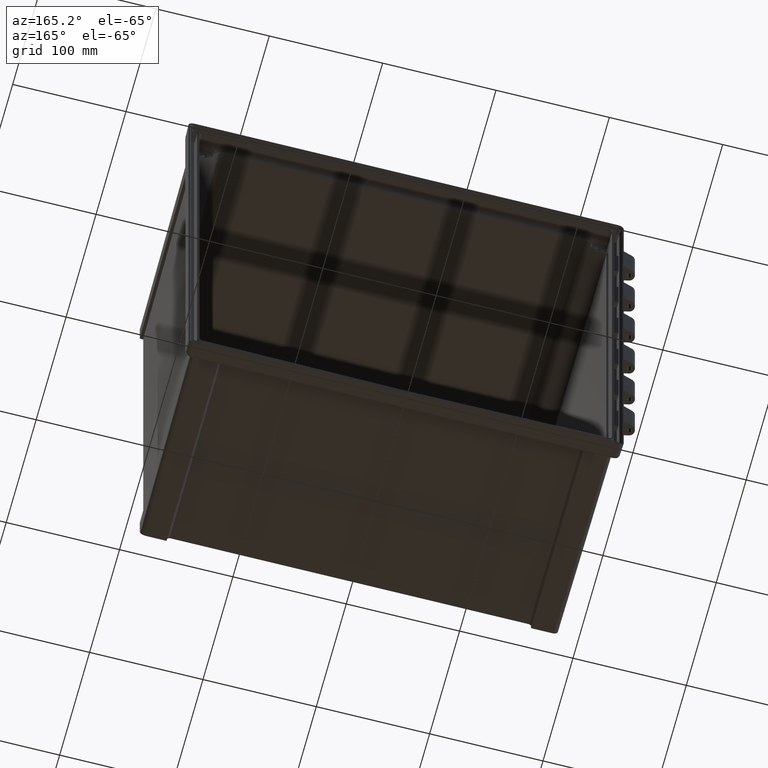
[diagram: clean part render]
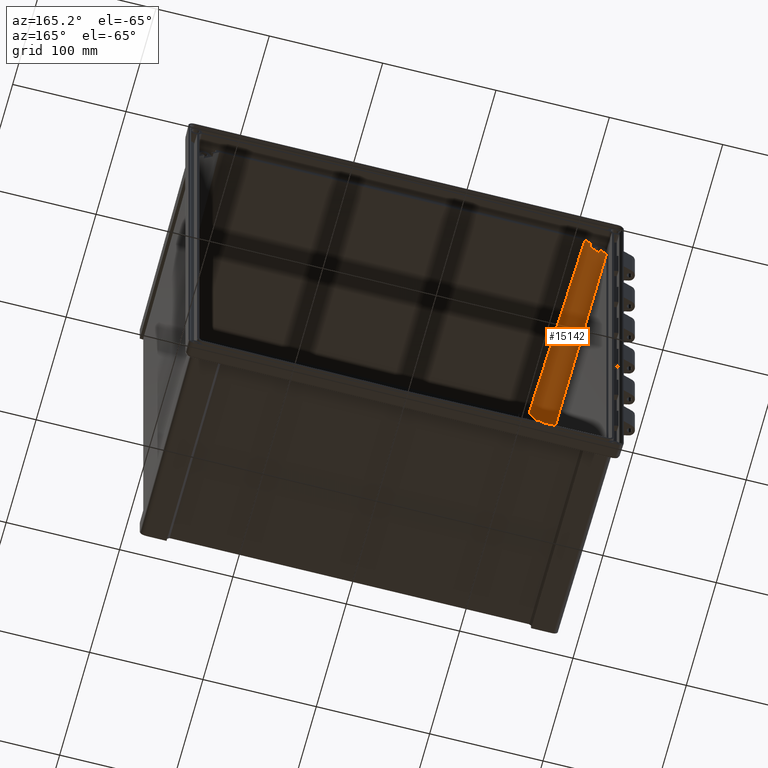
[diagram: same view with one face highlighted and labeled with its STEP entity id]
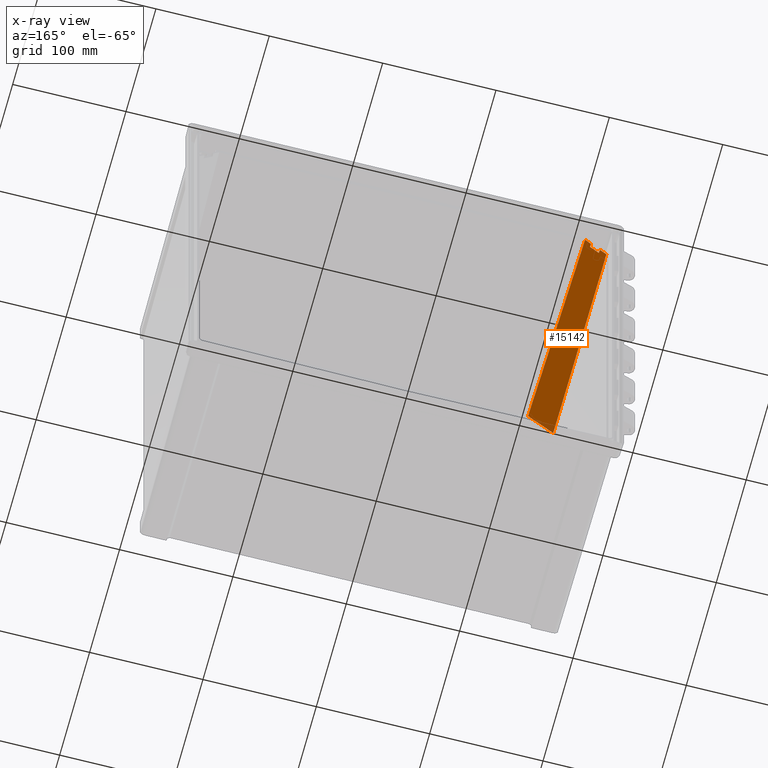
[diagram: x-ray of the same camera — body ghosted, the highlighted face saturated]
A machine part, auxiliary view. The second image highlights one B-rep face of the part: STEP entity #15142.
The next image is the same camera in x-ray: the body ghosted, the highlighted face saturated — about 2% of this face is hidden behind the body in this view.
In plain terms, the highlighted planar face has unit normal (0.7069, 0.0262, -0.7069).
Its self-contained STEP definition (entity closure, byte-faithful):
#19 = EDGE_CURVE ( 'NONE', #8154, #14624, #3677, .T. ) ;
#312 = CARTESIAN_POINT ( 'NONE',  ( -161.3894390574844800, -13.26352849845292400, 205.1841290895174800 ) ) ;
#327 = DIRECTION ( 'NONE',  ( 0.7068644733530222700, 0.02617694830787321200, -0.7068644733530193800 ) ) ;
#475 = DIRECTION ( 'NONE',  ( 0.7071067811865460200, -0.0000000000000000000, 0.7071067811865489100 ) ) ;
#710 = CARTESIAN_POINT ( 'NONE',  ( -156.5170099140074500, -185.4000000000000100, 203.6819168607589700 ) ) ;
#926 = EDGE_CURVE ( 'NONE', #16484, #8154, #3054, .T. ) ;
#1837 = CARTESIAN_POINT ( 'NONE',  ( 54083.21385931700900, -185.4000000000000100, 54443.41278609200500 ) ) ;
#1886 = CARTESIAN_POINT ( 'NONE',  ( -166.5219498892426500, -16.26352849845282500, 199.9405208014900400 ) ) ;
#2006 = VERTEX_POINT ( 'NONE', #710 ) ;
#2051 = VECTOR ( 'NONE', #2749, 1000.000000000000100 ) ;
#2067 = CARTESIAN_POINT ( 'NONE',  ( 54080.08208735902700, -16.26352849845282500, 54446.54455804998700 ) ) ;
#2115 = VECTOR ( 'NONE', #3309, 1000.000000000000100 ) ;
#2749 = DIRECTION ( 'NONE',  ( -0.7071067811865460200, 0.0000000000000000000, -0.7071067811865489100 ) ) ;
#2798 = ORIENTED_EDGE ( 'NONE', *, *, #11690, .T. ) ;
#2825 = DIRECTION ( 'NONE',  ( -0.7071067811865460200, 0.0000000000000000000, -0.7071067811865489100 ) ) ;
#2952 = CARTESIAN_POINT ( 'NONE',  ( -189.3881877647203300, 1041.417130803650700, 216.2428265273774700 ) ) ;
#3046 = LINE ( 'NONE', #13965, #6098 ) ;
#3054 = LINE ( 'NONE', #3535, #5293 ) ;
#3309 = DIRECTION ( 'NONE',  ( -0.7071067811865460200, 0.0000000000000000000, -0.7071067811865489100 ) ) ;
#3387 = ORIENTED_EDGE ( 'NONE', *, *, #6769, .F. ) ;
#3389 = LINE ( 'NONE', #14389, #6025 ) ;
#3535 = CARTESIAN_POINT ( 'NONE',  ( -58.57926973538241100, -2694.275948649843000, 208.7097450344117500 ) ) ;
#3677 = LINE ( 'NONE', #6595, #2051 ) ;
#3967 = LINE ( 'NONE', #1837, #8616 ) ;
#4197 = AXIS2_PLACEMENT_3D ( 'NONE', #15924, #327, #6835 ) ;
#5293 = VECTOR ( 'NONE', #14939, 1000.000000000000100 ) ;
#5438 = VECTOR ( 'NONE', #15595, 1000.000000000000100 ) ;
#5731 = VECTOR ( 'NONE', #6746, 1000.000000000000100 ) ;
#6025 = VECTOR ( 'NONE', #2825, 1000.000000000000100 ) ;
#6068 = EDGE_CURVE ( 'NONE', #9495, #12664, #3389, .T. ) ;
#6098 = VECTOR ( 'NONE', #11427, 1000.000000000000100 ) ;
#6284 = ORIENTED_EDGE ( 'NONE', *, *, #16422, .F. ) ;
#6407 = CARTESIAN_POINT ( 'NONE',  ( -174.2933895610632100, -16.26352849845282500, 192.1690811296718400 ) ) ;
#6595 = CARTESIAN_POINT ( 'NONE',  ( 54080.02653863088900, -13.26352849845282500, 54446.60010677811800 ) ) ;
#6641 = LINE ( 'NONE', #9047, #5438 ) ;
#6746 = DIRECTION ( 'NONE',  ( -0.008723041978589085600, 0.9995616053478232300, 0.02829320860422561400 ) ) ;
#6769 = EDGE_CURVE ( 'NONE', #7660, #2006, #3967, .T. ) ;
#6792 = CARTESIAN_POINT ( 'NONE',  ( -178.6819168607591200, -185.4000000000000100, 181.5170099140110300 ) ) ;
#6835 = DIRECTION ( 'NONE',  ( -0.7071067811865460200, 0.0000000000000000000, -0.7071067811865489100 ) ) ;
#7250 = ORIENTED_EDGE ( 'NONE', *, *, #9071, .T. ) ;
#7534 = CARTESIAN_POINT ( 'NONE',  ( -166.5034204786350900, -13.26352849845282500, 200.0701476683594500 ) ) ;
#7660 = VERTEX_POINT ( 'NONE', #6792 ) ;
#8154 = VERTEX_POINT ( 'NONE', #9326 ) ;
#8616 = VECTOR ( 'NONE', #475, 1000.000000000000100 ) ;
#8886 = EDGE_CURVE ( 'NONE', #14785, #16484, #13353, .T. ) ;
#9047 = CARTESIAN_POINT ( 'NONE',  ( -150.0297522114522100, 2653.901978223038400, 315.3155836929713000 ) ) ;
#9071 = EDGE_CURVE ( 'NONE', #7660, #14624, #12927, .T. ) ;
#9326 = CARTESIAN_POINT ( 'NONE',  ( -174.4230164279291000, -13.26352849845282500, 192.1505517190713600 ) ) ;
#9417 = PLANE ( 'NONE',  #4197 ) ;
#9495 = VERTEX_POINT ( 'NONE', #312 ) ;
#9829 = ORIENTED_EDGE ( 'NONE', *, *, #926, .F. ) ;
#10547 = ORIENTED_EDGE ( 'NONE', *, *, #19, .F. ) ;
#11150 = ORIENTED_EDGE ( 'NONE', *, *, #6068, .F. ) ;
#11427 = DIRECTION ( 'NONE',  ( 0.02829320860422553100, -0.9995616053478232300, -0.008723041978589085600 ) ) ;
#11690 = EDGE_CURVE ( 'NONE', #9495, #2006, #3046, .T. ) ;
#12326 = CARTESIAN_POINT ( 'NONE',  ( -180.1841290895207000, -13.26352849845281400, 186.3894390574847400 ) ) ;
#12664 = VERTEX_POINT ( 'NONE', #7534 ) ;
#12927 = LINE ( 'NONE', #2952, #5731 ) ;
#13185 = FACE_OUTER_BOUND ( 'NONE', #13638, .T. ) ;
#13353 = LINE ( 'NONE', #2067, #2115 ) ;
#13638 = EDGE_LOOP ( 'NONE', ( #9829, #16084, #6284, #11150, #2798, #3387, #7250, #10547 ) ) ;
#13965 = CARTESIAN_POINT ( 'NONE',  ( -131.1651713159420800, -1081.046896825459000, 195.8657248049533500 ) ) ;
#14389 = CARTESIAN_POINT ( 'NONE',  ( 54080.02653863088900, -13.26352849845282500, 54446.60010677811800 ) ) ;
#14624 = VERTEX_POINT ( 'NONE', #12326 ) ;
#14785 = VERTEX_POINT ( 'NONE', #1886 ) ;
#14939 = DIRECTION ( 'NONE',  ( -0.04316785430049768100, 0.9990487776442201800, -0.006170595002143064400 ) ) ;
#15142 = ADVANCED_FACE ( 'NONE', ( #13185 ), #9417, .T. ) ;
#15595 = DIRECTION ( 'NONE',  ( -0.006170595002143202400, -0.9990487776442201800, -0.04316785430049802800 ) ) ;
#15924 = CARTESIAN_POINT ( 'NONE',  ( 54080.15127277224400, -20.00000000000000000, 54446.47537263677100 ) ) ;
#16084 = ORIENTED_EDGE ( 'NONE', *, *, #8886, .F. ) ;
#16422 = EDGE_CURVE ( 'NONE', #12664, #14785, #6641, .T. ) ;
#16484 = VERTEX_POINT ( 'NONE', #6407 ) ;